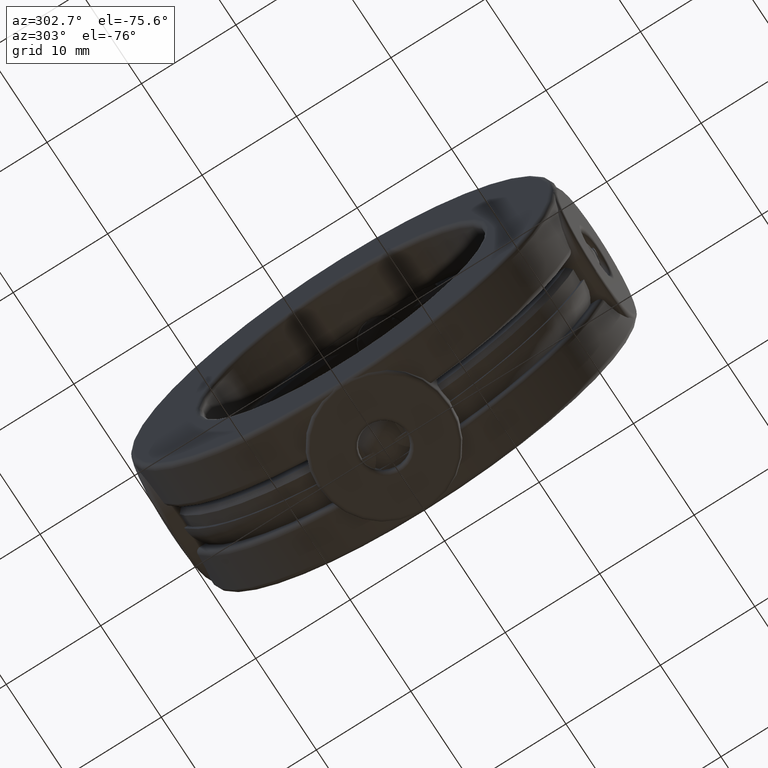
[diagram: clean part render]
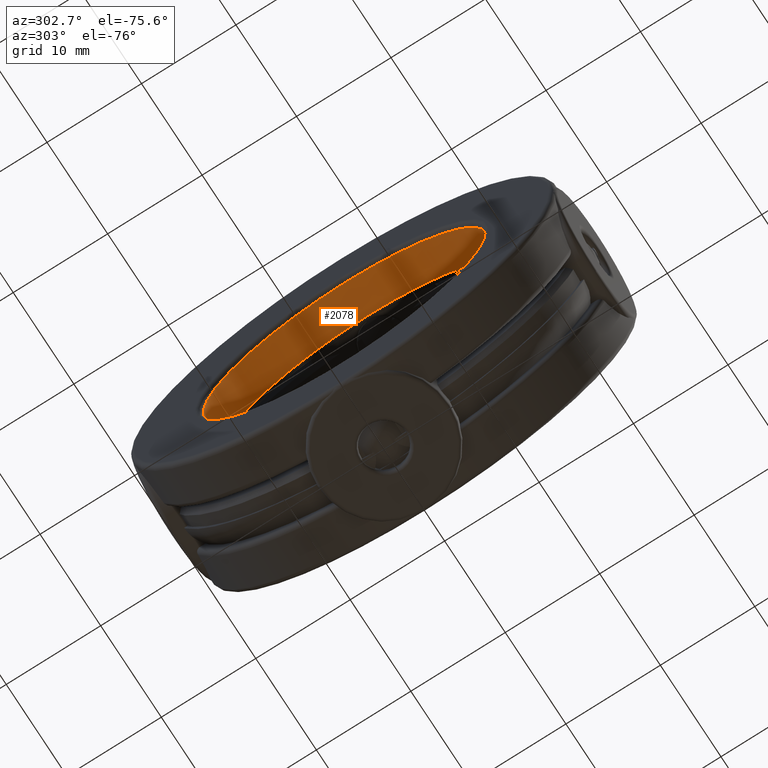
[diagram: same view with one face highlighted and labeled with its STEP entity id]
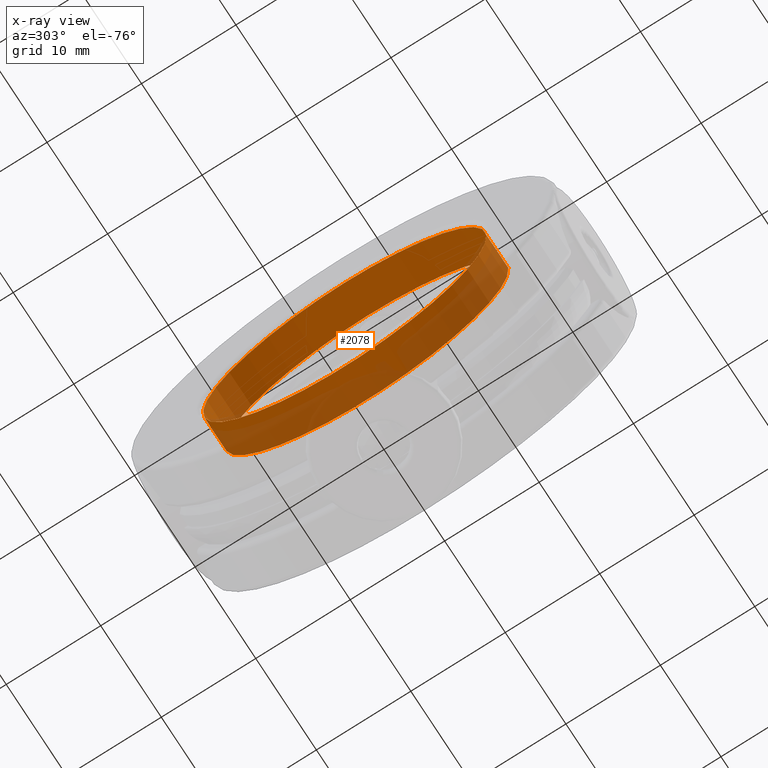
[diagram: x-ray of the same camera — body ghosted, the highlighted face saturated]
A machine part, auxiliary view. The second image highlights one B-rep face of the part: STEP entity #2078.
The next image is the same camera in x-ray: the body ghosted, the highlighted face saturated — about 35% of this face is hidden behind the body in this view.
In plain terms, the highlighted cylindrical surface (bore or boss wall) has radius 14.9987 mm, axis along (-1, -0, -0).
Its self-contained STEP definition (entity closure, byte-faithful):
#36 = DIRECTION ( 'NONE',  ( -1.000000000000000000, -0.0000000000000000000, -0.0000000000000000000 ) ) ;
#831 = CARTESIAN_POINT ( 'NONE',  ( -0.2555000000000000000, 0.0000000000000000000, 0.0000000000000000000 ) ) ;
#852 = CYLINDRICAL_SURFACE ( 'NONE', #2443, 0.5905000000000000200 ) ;
#1116 = ORIENTED_EDGE ( 'NONE', *, *, #2529, .T. ) ;
#1191 = EDGE_CURVE ( 'NONE', #1517, #1517, #3145, .T. ) ;
#1241 = CIRCLE ( 'NONE', #1988, 0.5905000000000000200 ) ;
#1279 = FACE_OUTER_BOUND ( 'NONE', #1913, .T. ) ;
#1485 = DIRECTION ( 'NONE',  ( -1.000000000000000000, -0.0000000000000000000, -0.0000000000000000000 ) ) ;
#1517 = VERTEX_POINT ( 'NONE', #2494 ) ;
#1564 = DIRECTION ( 'NONE',  ( 0.0000000000000000000, 0.0000000000000000000, 1.000000000000000000 ) ) ;
#1665 = VERTEX_POINT ( 'NONE', #1766 ) ;
#1766 = CARTESIAN_POINT ( 'NONE',  ( -0.2555000000000000000, 0.0000000000000000000, 0.5905000000000000200 ) ) ;
#1913 = EDGE_LOOP ( 'NONE', ( #1116 ) ) ;
#1979 = DIRECTION ( 'NONE',  ( 0.0000000000000000000, 0.0000000000000000000, 1.000000000000000000 ) ) ;
#1988 = AXIS2_PLACEMENT_3D ( 'NONE', #831, #36, #1564 ) ;
#2078 = ADVANCED_FACE ( 'NONE', ( #1279, #2405 ), #852, .F. ) ;
#2405 = FACE_OUTER_BOUND ( 'NONE', #3072, .T. ) ;
#2443 = AXIS2_PLACEMENT_3D ( 'NONE', #2463, #1485, #2706 ) ;
#2463 = CARTESIAN_POINT ( 'NONE',  ( 0.0000000000000000000, 0.0000000000000000000, 0.0000000000000000000 ) ) ;
#2494 = CARTESIAN_POINT ( 'NONE',  ( -0.1118351699999998900, 0.0000000000000000000, 0.5905000000000000200 ) ) ;
#2517 = AXIS2_PLACEMENT_3D ( 'NONE', #2968, #2930, #1979 ) ;
#2529 = EDGE_CURVE ( 'NONE', #1665, #1665, #1241, .T. ) ;
#2706 = DIRECTION ( 'NONE',  ( 0.0000000000000000000, 0.0000000000000000000, 1.000000000000000000 ) ) ;
#2930 = DIRECTION ( 'NONE',  ( -1.000000000000000000, -0.0000000000000000000, -0.0000000000000000000 ) ) ;
#2968 = CARTESIAN_POINT ( 'NONE',  ( -0.1118351699999998900, 0.0000000000000000000, 0.0000000000000000000 ) ) ;
#3072 = EDGE_LOOP ( 'NONE', ( #3161 ) ) ;
#3145 = CIRCLE ( 'NONE', #2517, 0.5905000000000000200 ) ;
#3161 = ORIENTED_EDGE ( 'NONE', *, *, #1191, .F. ) ;